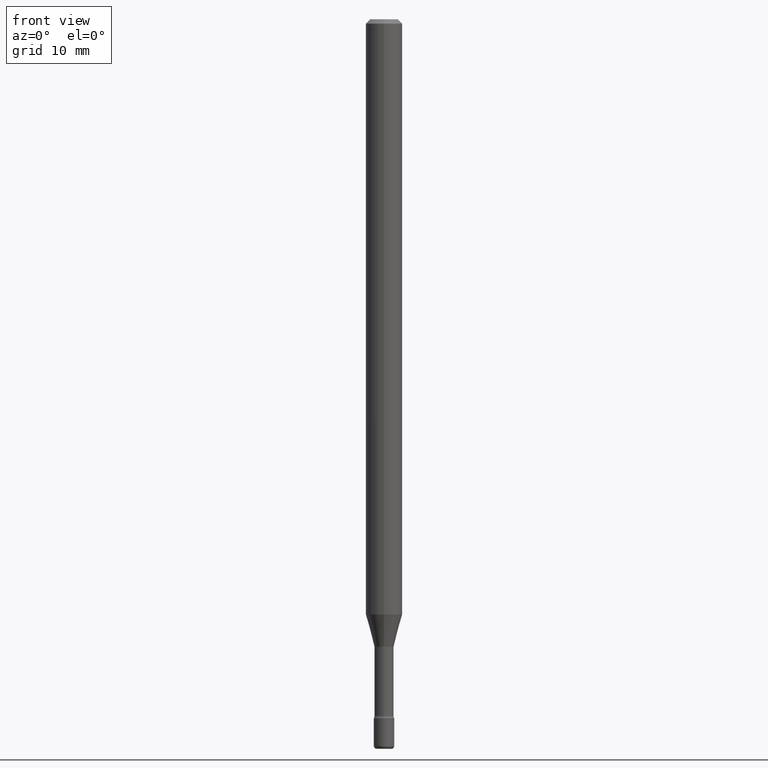
[diagram: clean part render]
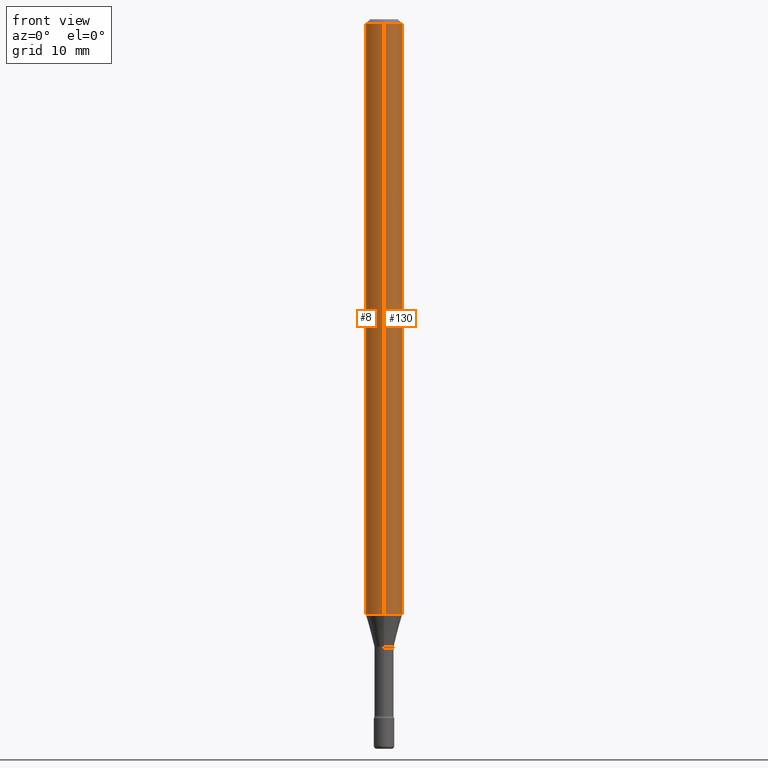
[diagram: same view with one multi-face feature highlighted, each face labeled with its STEP entity id]
A machine part, front view. The highlighted faces form ONE feature: a constant-radius fillet chain: 2 tangent blend faces with common blend radius 1.5875 mm. The faces share edges in the B-rep.
Their STEP definitions:
[1] entity #8 (Cylinder):
#8 = ADVANCED_FACE ( 'NONE', ( #412 ), #272, .T. ) ;
#15 = CARTESIAN_POINT ( 'NONE',  ( -4.364351673553912750E-16, -0.06250000000000005551, -0.01499999999999981036 ) ) ;
#22 = DIRECTION ( 'NONE',  ( -2.445361929537154917E-29, 3.491634392286096321E-15, 1.000000000000000000 ) ) ;
#37 = LINE ( 'NONE', #558, #134 ) ;
#51 = CARTESIAN_POINT ( 'NONE',  ( -1.169113584055446105E-44, 1.669184350826100908E-30, 4.780733988912460139E-16 ) ) ;
#53 = CARTESIAN_POINT ( 'NONE',  ( 4.987392185572634863E-29, -7.121297617592497891E-15, -2.039531296095961732 ) ) ;
#57 = CARTESIAN_POINT ( 'NONE',  ( -4.364351673553916201E-16, -0.06250000000000000000, 6.963005484091270833E-16 ) ) ;
#66 = CARTESIAN_POINT ( 'NONE',  ( 4.440892098501128074E-16, 0.06249999999999995837, -0.01500000000000024578 ) ) ;
#67 = VERTEX_POINT ( 'NONE', #66 ) ;
#72 = CARTESIAN_POINT ( 'NONE',  ( 3.668042894305739311E-31, -5.237451588429154292E-17, -0.01500000000000002720 ) ) ;
#98 = CARTESIAN_POINT ( 'NONE',  ( -4.364351673553420205E-16, -0.06250000000000714706, -2.039531296095961288 ) ) ;
#111 = AXIS2_PLACEMENT_3D ( 'NONE', #53, #354, #442 ) ;
#132 = DIRECTION ( 'NONE',  ( -2.445361929537154917E-29, 3.491634392286096321E-15, 1.000000000000000000 ) ) ;
#134 = VECTOR ( 'NONE', #132, 39.37007874015748143 ) ;
#141 = DIRECTION ( 'NONE',  ( -6.982962677686265922E-15, -1.000000000000000000, 3.491634392286095926E-15 ) ) ;
#143 = VECTOR ( 'NONE', #22, 39.37007874015748143 ) ;
#192 = EDGE_LOOP ( 'NONE', ( #379, #368, #370, #330 ) ) ;
#197 = EDGE_CURVE ( 'NONE', #67, #252, #214, .T. ) ;
#203 = VERTEX_POINT ( 'NONE', #98 ) ;
#204 = EDGE_CURVE ( 'NONE', #203, #252, #274, .T. ) ;
#214 = CIRCLE ( 'NONE', #348, 0.06250000000000000000 ) ;
#217 = VERTEX_POINT ( 'NONE', #510 ) ;
#252 = VERTEX_POINT ( 'NONE', #15 ) ;
#272 = CYLINDRICAL_SURFACE ( 'NONE', #276, 0.06250000000000000000 ) ;
#274 = LINE ( 'NONE', #57, #143 ) ;
#276 = AXIS2_PLACEMENT_3D ( 'NONE', #51, #443, #141 ) ;
#330 = ORIENTED_EDGE ( 'NONE', *, *, #197, .F. ) ;
#348 = AXIS2_PLACEMENT_3D ( 'NONE', #72, #450, #358 ) ;
#354 = DIRECTION ( 'NONE',  ( -2.445361929537154917E-29, 3.491634392286096321E-15, 1.000000000000000000 ) ) ;
#358 = DIRECTION ( 'NONE',  ( -6.982962677686265922E-15, -1.000000000000000000, 3.483106191921935554E-15 ) ) ;
#364 = CIRCLE ( 'NONE', #111, 0.06250000000000000000 ) ;
#368 = ORIENTED_EDGE ( 'NONE', *, *, #502, .T. ) ;
#370 = ORIENTED_EDGE ( 'NONE', *, *, #204, .T. ) ;
#379 = ORIENTED_EDGE ( 'NONE', *, *, #384, .F. ) ;
#384 = EDGE_CURVE ( 'NONE', #217, #67, #37, .T. ) ;
#412 = FACE_OUTER_BOUND ( 'NONE', #192, .T. ) ;
#442 = DIRECTION ( 'NONE',  ( -6.982962677686265922E-15, -1.000000000000000000, 4.370956789862821150E-15 ) ) ;
#443 = DIRECTION ( 'NONE',  ( -2.445361929537154917E-29, 3.491634392286096321E-15, 1.000000000000000000 ) ) ;
#450 = DIRECTION ( 'NONE',  ( -2.445361929537154917E-29, 3.491634392286096321E-15, 1.000000000000000000 ) ) ;
#502 = EDGE_CURVE ( 'NONE', #217, #203, #364, .T. ) ;
#510 = CARTESIAN_POINT ( 'NONE',  ( 4.440892098501122158E-16, 0.06249999999999284600, -2.039531296095961732 ) ) ;
#558 = CARTESIAN_POINT ( 'NONE',  ( 4.440892098500625669E-16, 0.06250000000000000000, 2.598462493733650432E-16 ) ) ;
[2] entity #130 (Cylinder):
#15 = CARTESIAN_POINT ( 'NONE',  ( -4.364351673553912750E-16, -0.06250000000000005551, -0.01499999999999981036 ) ) ;
#22 = DIRECTION ( 'NONE',  ( -2.445361929537154917E-29, 3.491634392286096321E-15, 1.000000000000000000 ) ) ;
#37 = LINE ( 'NONE', #558, #134 ) ;
#57 = CARTESIAN_POINT ( 'NONE',  ( -4.364351673553916201E-16, -0.06250000000000000000, 6.963005484091270833E-16 ) ) ;
#66 = CARTESIAN_POINT ( 'NONE',  ( 4.440892098501128074E-16, 0.06249999999999995837, -0.01500000000000024578 ) ) ;
#67 = VERTEX_POINT ( 'NONE', #66 ) ;
#70 = CYLINDRICAL_SURFACE ( 'NONE', #267, 0.06250000000000000000 ) ;
#90 = ORIENTED_EDGE ( 'NONE', *, *, #204, .F. ) ;
#98 = CARTESIAN_POINT ( 'NONE',  ( -4.364351673553420205E-16, -0.06250000000000714706, -2.039531296095961288 ) ) ;
#113 = CARTESIAN_POINT ( 'NONE',  ( -1.169113584055446105E-44, 1.669184350826100908E-30, 4.780733988912460139E-16 ) ) ;
#117 = EDGE_LOOP ( 'NONE', ( #296, #328, #466, #90 ) ) ;
#130 = ADVANCED_FACE ( 'NONE', ( #264 ), #70, .T. ) ;
#132 = DIRECTION ( 'NONE',  ( -2.445361929537154917E-29, 3.491634392286096321E-15, 1.000000000000000000 ) ) ;
#134 = VECTOR ( 'NONE', #132, 39.37007874015748143 ) ;
#143 = VECTOR ( 'NONE', #22, 39.37007874015748143 ) ;
#156 = DIRECTION ( 'NONE',  ( -6.982962677686265922E-15, -1.000000000000000000, 3.483106191921935554E-15 ) ) ;
#167 = AXIS2_PLACEMENT_3D ( 'NONE', #460, #545, #156 ) ;
#174 = DIRECTION ( 'NONE',  ( -6.982962677686265922E-15, -1.000000000000000000, 4.370956789862821150E-15 ) ) ;
#178 = AXIS2_PLACEMENT_3D ( 'NONE', #434, #261, #174 ) ;
#203 = VERTEX_POINT ( 'NONE', #98 ) ;
#204 = EDGE_CURVE ( 'NONE', #203, #252, #274, .T. ) ;
#217 = VERTEX_POINT ( 'NONE', #510 ) ;
#222 = EDGE_CURVE ( 'NONE', #252, #67, #431, .T. ) ;
#252 = VERTEX_POINT ( 'NONE', #15 ) ;
#261 = DIRECTION ( 'NONE',  ( -2.445361929537154917E-29, 3.491634392286096321E-15, 1.000000000000000000 ) ) ;
#264 = FACE_OUTER_BOUND ( 'NONE', #117, .T. ) ;
#267 = AXIS2_PLACEMENT_3D ( 'NONE', #113, #504, #375 ) ;
#274 = LINE ( 'NONE', #57, #143 ) ;
#296 = ORIENTED_EDGE ( 'NONE', *, *, #305, .T. ) ;
#305 = EDGE_CURVE ( 'NONE', #203, #217, #405, .T. ) ;
#328 = ORIENTED_EDGE ( 'NONE', *, *, #384, .T. ) ;
#375 = DIRECTION ( 'NONE',  ( -6.982962677686265922E-15, -1.000000000000000000, 3.491634392286095926E-15 ) ) ;
#384 = EDGE_CURVE ( 'NONE', #217, #67, #37, .T. ) ;
#405 = CIRCLE ( 'NONE', #178, 0.06250000000000000000 ) ;
#431 = CIRCLE ( 'NONE', #167, 0.06250000000000000000 ) ;
#434 = CARTESIAN_POINT ( 'NONE',  ( 4.987392185572634863E-29, -7.121297617592497891E-15, -2.039531296095961732 ) ) ;
#460 = CARTESIAN_POINT ( 'NONE',  ( 3.668042894305739311E-31, -5.237451588429154292E-17, -0.01500000000000002720 ) ) ;
#466 = ORIENTED_EDGE ( 'NONE', *, *, #222, .F. ) ;
#504 = DIRECTION ( 'NONE',  ( -2.445361929537154917E-29, 3.491634392286096321E-15, 1.000000000000000000 ) ) ;
#510 = CARTESIAN_POINT ( 'NONE',  ( 4.440892098501122158E-16, 0.06249999999999284600, -2.039531296095961732 ) ) ;
#545 = DIRECTION ( 'NONE',  ( -2.445361929537154917E-29, 3.491634392286096321E-15, 1.000000000000000000 ) ) ;
#558 = CARTESIAN_POINT ( 'NONE',  ( 4.440892098500625669E-16, 0.06250000000000000000, 2.598462493733650432E-16 ) ) ;